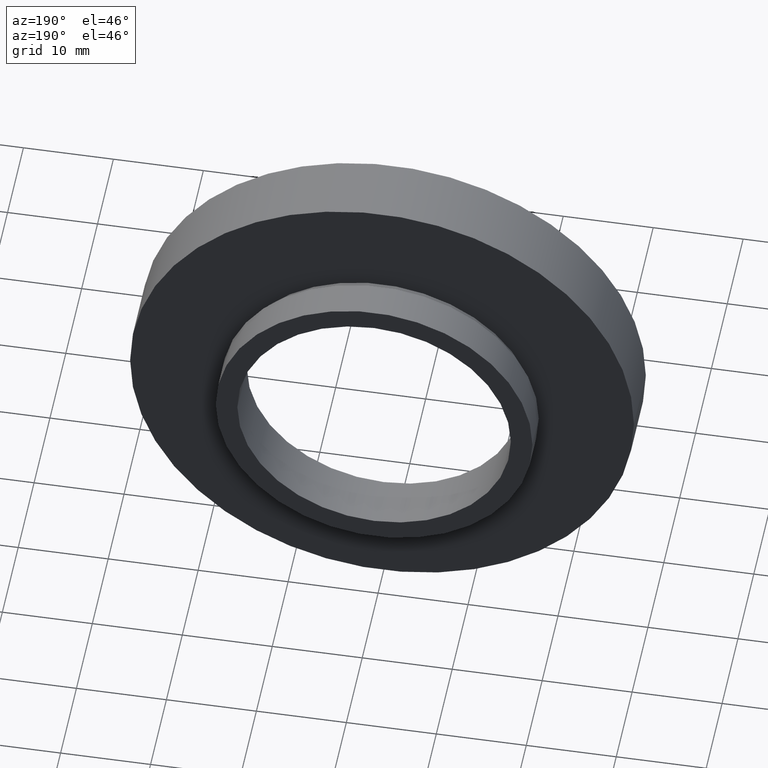
[diagram: clean part render]
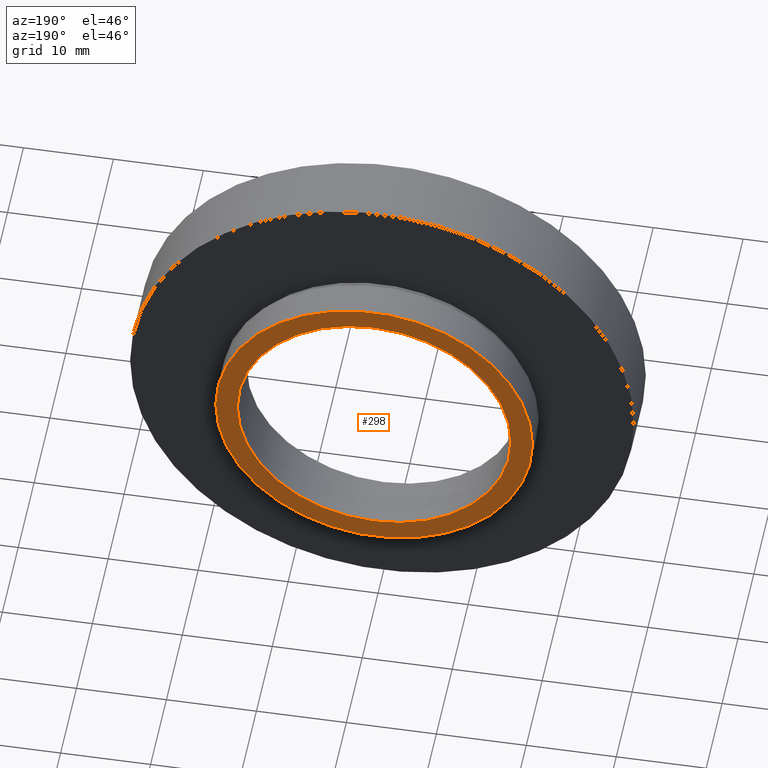
[diagram: same view with one face highlighted and labeled with its STEP entity id]
A machine part, auxiliary view. The second image highlights one B-rep face of the part: STEP entity #298.
In plain terms, the highlighted planar face has unit normal (0, -1, 0).
Its self-contained STEP definition (entity closure, byte-faithful):
#3 = ORIENTED_EDGE ( 'NONE', *, *, #522, .F. ) ;
#14 = CARTESIAN_POINT ( 'NONE',  ( 5.371323195044474300E-016, 12.49999999999999600, 0.0000000000000000000 ) ) ;
#16 = DIRECTION ( 'NONE',  ( -1.224646799147351000E-016, 1.000000000000000000, -0.0000000000000000000 ) ) ;
#42 = CARTESIAN_POINT ( 'NONE',  ( 5.371323195044474300E-016, 12.49999999999999600, 0.0000000000000000000 ) ) ;
#44 = DIRECTION ( 'NONE',  ( -1.000000000000000000, -1.141265444721583500E-016, 0.0000000000000000000 ) ) ;
#73 = CARTESIAN_POINT ( 'NONE',  ( 17.60000000000000100, 12.49999999999999800, 2.155378366499341600E-015 ) ) ;
#77 = ORIENTED_EDGE ( 'NONE', *, *, #295, .T. ) ;
#97 = CARTESIAN_POINT ( 'NONE',  ( -15.20000000000000100, 12.49999999999999500, 0.0000000000000000000 ) ) ;
#109 = AXIS2_PLACEMENT_3D ( 'NONE', #468, #462, #599 ) ;
#116 = EDGE_CURVE ( 'NONE', #275, #225, #572, .T. ) ;
#120 = CARTESIAN_POINT ( 'NONE',  ( 5.371323195044474300E-016, 12.49999999999999600, 0.0000000000000000000 ) ) ;
#138 = CARTESIAN_POINT ( 'NONE',  ( 15.20000000000000100, 12.49999999999999800, 1.861463134703977100E-015 ) ) ;
#153 = AXIS2_PLACEMENT_3D ( 'NONE', #14, #16, #580 ) ;
#165 = DIRECTION ( 'NONE',  ( -1.000000000000000000, -1.141265444721583500E-016, 0.0000000000000000000 ) ) ;
#172 = DIRECTION ( 'NONE',  ( -1.224646799147351000E-016, 1.000000000000000000, -0.0000000000000000000 ) ) ;
#182 = FACE_BOUND ( 'NONE', #210, .T. ) ;
#188 = EDGE_LOOP ( 'NONE', ( #77, #596 ) ) ;
#195 = DIRECTION ( 'NONE',  ( 1.224646799147351000E-016, -1.000000000000000000, 0.0000000000000000000 ) ) ;
#210 = EDGE_LOOP ( 'NONE', ( #539, #3 ) ) ;
#225 = VERTEX_POINT ( 'NONE', #138 ) ;
#235 = AXIS2_PLACEMENT_3D ( 'NONE', #350, #195, #302 ) ;
#275 = VERTEX_POINT ( 'NONE', #97 ) ;
#295 = EDGE_CURVE ( 'NONE', #469, #409, #541, .T. ) ;
#298 = ADVANCED_FACE ( 'NONE', ( #182, #601 ), #582, .F. ) ;
#302 = DIRECTION ( 'NONE',  ( 1.000000000000000000, 1.224646799147351000E-016, 0.0000000000000000000 ) ) ;
#304 = AXIS2_PLACEMENT_3D ( 'NONE', #120, #172, #165 ) ;
#347 = AXIS2_PLACEMENT_3D ( 'NONE', #42, #609, #44 ) ;
#350 = CARTESIAN_POINT ( 'NONE',  ( 15.20000000000000100, 12.49999999999999800, 0.0000000000000000000 ) ) ;
#360 = CARTESIAN_POINT ( 'NONE',  ( -17.60000000000000100, 12.49999999999999500, 0.0000000000000000000 ) ) ;
#409 = VERTEX_POINT ( 'NONE', #73 ) ;
#462 = DIRECTION ( 'NONE',  ( -1.224646799147351000E-016, 1.000000000000000000, -0.0000000000000000000 ) ) ;
#468 = CARTESIAN_POINT ( 'NONE',  ( 5.371323195044474300E-016, 12.49999999999999600, 0.0000000000000000000 ) ) ;
#469 = VERTEX_POINT ( 'NONE', #360 ) ;
#478 = CIRCLE ( 'NONE', #304, 15.20000000000000100 ) ;
#522 = EDGE_CURVE ( 'NONE', #225, #275, #478, .T. ) ;
#539 = ORIENTED_EDGE ( 'NONE', *, *, #116, .F. ) ;
#541 = CIRCLE ( 'NONE', #153, 17.60000000000000100 ) ;
#572 = CIRCLE ( 'NONE', #347, 15.20000000000000100 ) ;
#580 = DIRECTION ( 'NONE',  ( -1.000000000000000000, -9.856383386231857600E-017, 0.0000000000000000000 ) ) ;
#582 = PLANE ( 'NONE',  #235 ) ;
#590 = EDGE_CURVE ( 'NONE', #409, #469, #620, .T. ) ;
#596 = ORIENTED_EDGE ( 'NONE', *, *, #590, .T. ) ;
#599 = DIRECTION ( 'NONE',  ( -1.000000000000000000, -9.856383386231857600E-017, 0.0000000000000000000 ) ) ;
#601 = FACE_OUTER_BOUND ( 'NONE', #188, .T. ) ;
#609 = DIRECTION ( 'NONE',  ( -1.224646799147351000E-016, 1.000000000000000000, -0.0000000000000000000 ) ) ;
#620 = CIRCLE ( 'NONE', #109, 17.60000000000000100 ) ;